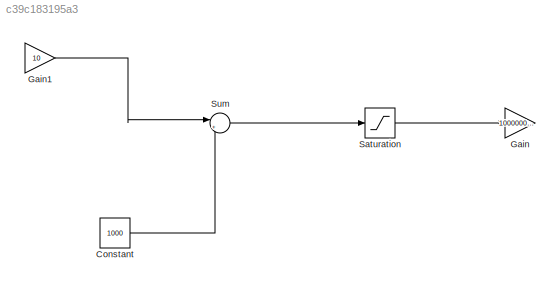
MODEL slx_c39c183195a3
KIND model
CONFIG AbsTol = auto
CONFIG EnableMultiTasking = off
CONFIG FixedStep = auto
CONFIG MaxStep = auto
CONFIG MinStep = auto
CONFIG RelTol = 1e-3
CONFIG SampleTimeConstraint = Unconstrained
CONFIG SolverName = VariableStepAuto
CONFIG StartTime = 0.0
CONFIG StopTime = 10.0
BLOCK [Constant] Constant
  Value = 1000
BLOCK [Gain] Gain
  Gain = 1000000/400
BLOCK [Gain] Gain1
  Gain = 10
BLOCK [Saturate] Saturation
  LowerLimit = 1000
  UpperLimit = 2000
BLOCK [Sum] Sum
  Inputs = |++
  Ports = [2, 1]
LINE Constant:1 -> Sum:2
LINE Gain1:1 -> Sum:1
LINE Saturation:1 -> Gain:1
LINE Sum:1 -> Saturation:1
